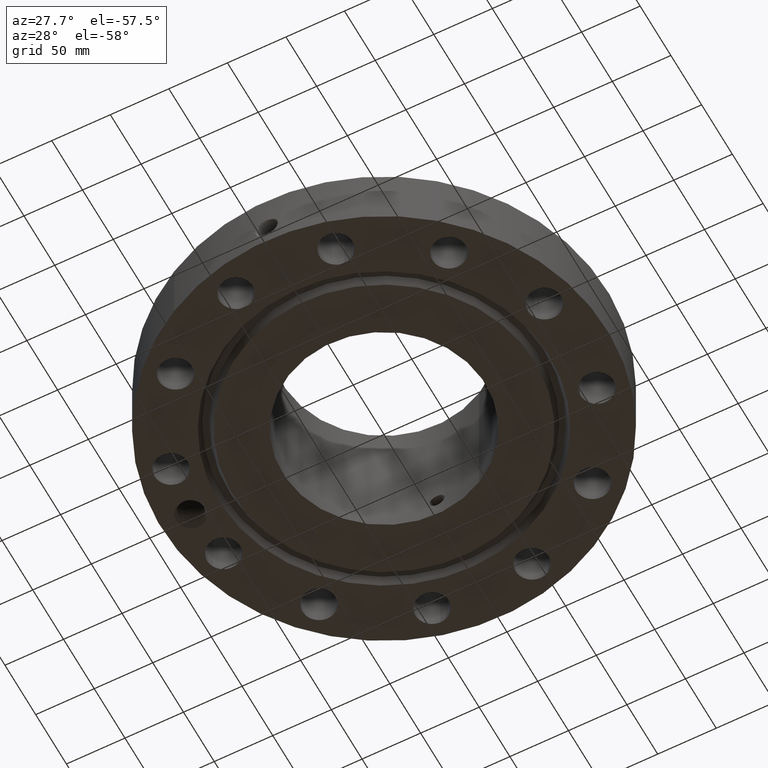
[diagram: clean part render]
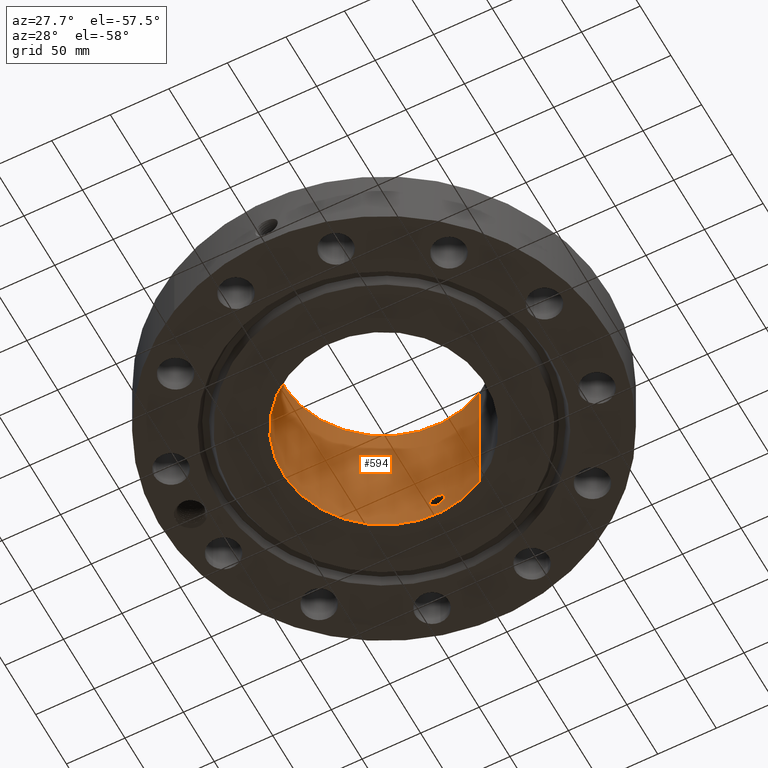
[diagram: same view with one face highlighted and labeled with its STEP entity id]
A machine part, auxiliary view. The second image highlights one B-rep face of the part: STEP entity #594.
In plain terms, the highlighted cylindrical surface (partial cylindrical patch) has radius 86.5251 mm, axis along (0, 0, -1).
Its self-contained STEP definition (entity closure, byte-faithful):
#232=AXIS2_PLACEMENT_3D('Cylinder Axis2P3D',#229,#230,#231) ;
#533=AXIS2_PLACEMENT_3D('Circle Axis2P3D',#531,#532,$) ;
#543=AXIS2_PLACEMENT_3D('Circle Axis2P3D',#541,#542,$) ;
#229=CARTESIAN_POINT('Axis2P3D Location',(0.,0.,2.46600000001)) ;
#238=CARTESIAN_POINT('Vertex',(1.63316309726,2.98948499709,4.93200000002)) ;
#240=CARTESIAN_POINT('Vertex',(-1.63316309726,-2.98948499709,4.93200000002)) ;
#243=CARTESIAN_POINT('Line Origine',(1.63316309726,2.98948499709,2.46600000001)) ;
#247=CARTESIAN_POINT('Vertex',(1.63316309726,2.98948499709,-1.28680967894E-014)) ;
#254=CARTESIAN_POINT('Vertex',(-1.63316309726,-2.98948499709,-1.28680967894E-014)) ;
#257=CARTESIAN_POINT('Line Origine',(-1.63316309726,-2.98948499709,2.46600000001)) ;
#531=CARTESIAN_POINT('Axis2P3D Location',(0.,0.,4.93200000002)) ;
#541=CARTESIAN_POINT('Axis2P3D Location',(0.,0.,-1.28680967894E-014)) ;
#553=CARTESIAN_POINT('Control Point',(0.219395640473,3.39942756991,0.869856384655)) ;
#554=CARTESIAN_POINT('Control Point',(0.206922090819,3.40023260027,0.892689064143)) ;
#555=CARTESIAN_POINT('Control Point',(0.191480270867,3.40117174988,0.913895419936)) ;
#556=CARTESIAN_POINT('Control Point',(0.173350436995,3.40217234365,0.932964372555)) ;
#557=CARTESIAN_POINT('Control Point',(0.112173204399,3.4050649443,0.982423290157)) ;
#558=CARTESIAN_POINT('Control Point',(0.0350454157158,3.40694423699,1.00595853391)) ;
#559=CARTESIAN_POINT('Control Point',(-0.019493074421,3.40708579679,1.00761226367)) ;
#560=CARTESIAN_POINT('Control Point',(-0.124058529577,3.40502079393,0.982504485926)) ;
#561=CARTESIAN_POINT('Control Point',(-0.2030914497,3.40074014384,0.909671245982)) ;
#562=CARTESIAN_POINT('Control Point',(-0.232089622916,3.39862929034,0.863500959846)) ;
#563=CARTESIAN_POINT('Control Point',(-0.25582004358,3.39688687915,0.785327448824)) ;
#564=CARTESIAN_POINT('Control Point',(-0.248318916533,3.39743715578,0.705895312216)) ;
#565=CARTESIAN_POINT('Control Point',(-0.242084279065,3.39790142147,0.679274865337)) ;
#566=CARTESIAN_POINT('Control Point',(-0.232337683464,3.39859230345,0.653833866139)) ;
#567=CARTESIAN_POINT('Control Point',(-0.219395640473,3.39942756991,0.630143615351)) ;
#568=CARTESIAN_POINT('Vertex',(0.219395640473,3.39942756991,0.869856384655)) ;
#570=CARTESIAN_POINT('Vertex',(-0.219395640473,3.39942756991,0.630143615351)) ;
#574=CARTESIAN_POINT('Control Point',(-0.219395640473,3.39942756991,0.630143615351)) ;
#575=CARTESIAN_POINT('Control Point',(-0.206922090819,3.40023260027,0.607310935864)) ;
#576=CARTESIAN_POINT('Control Point',(-0.191480270868,3.40117174988,0.586104580072)) ;
#577=CARTESIAN_POINT('Control Point',(-0.173350436997,3.40217234365,0.567035627453)) ;
#578=CARTESIAN_POINT('Control Point',(-0.112173204394,3.4050649443,0.517576709844)) ;
#579=CARTESIAN_POINT('Control Point',(-0.0350454157001,3.40694423699,0.494041466089)) ;
#580=CARTESIAN_POINT('Control Point',(0.0194930743946,3.40708579679,0.492387736328)) ;
#581=CARTESIAN_POINT('Control Point',(0.124058529556,3.40502079393,0.517495514068)) ;
#582=CARTESIAN_POINT('Control Point',(0.203091449685,3.40074014384,0.590328754009)) ;
#583=CARTESIAN_POINT('Control Point',(0.232089622919,3.39862929034,0.636499040171)) ;
#584=CARTESIAN_POINT('Control Point',(0.25582004358,3.39688687915,0.714672551186)) ;
#585=CARTESIAN_POINT('Control Point',(0.248318916534,3.39743715578,0.79410468779)) ;
#586=CARTESIAN_POINT('Control Point',(0.242084279066,3.39790142147,0.820725134665)) ;
#587=CARTESIAN_POINT('Control Point',(0.232337683465,3.39859230345,0.846166133865)) ;
#588=CARTESIAN_POINT('Control Point',(0.219395640473,3.39942756991,0.869856384655)) ;
#230=DIRECTION('Axis2P3D Direction',(0.,0.,-0.0393700787402)) ;
#231=DIRECTION('Axis2P3D XDirection',(-0.0188750212049,-0.0345504945626,0.)) ;
#244=DIRECTION('Vector Direction',(0.,0.,-0.0393700787402)) ;
#258=DIRECTION('Vector Direction',(0.,0.,-0.0393700787402)) ;
#532=DIRECTION('Axis2P3D Direction',(0.,0.,-0.0393700787402)) ;
#542=DIRECTION('Axis2P3D Direction',(0.,0.,-0.0393700787402)) ;
#245=VECTOR('Line Direction',#244,0.0393700787402) ;
#259=VECTOR('Line Direction',#258,0.0393700787402) ;
#547=ORIENTED_EDGE('',*,*,#535,.F.) ;
#548=ORIENTED_EDGE('',*,*,#261,.T.) ;
#549=ORIENTED_EDGE('',*,*,#545,.T.) ;
#550=ORIENTED_EDGE('',*,*,#249,.F.) ;
#591=ORIENTED_EDGE('',*,*,#572,.F.) ;
#592=ORIENTED_EDGE('',*,*,#589,.F.) ;
#593=FACE_BOUND('',#590,.T.) ;
#594=ADVANCED_FACE('PartBody',(#551,#593),#233,.F.) ;
#552=B_SPLINE_CURVE_WITH_KNOTS('',5,(#553,#554,#555,#556,#557,#558,#559,#560,#561,#562,#563,#564,#565,#566,#567),.UNSPECIFIED.,.F.,.U.,(6,3,3,3,6),(0.,4.67514847916,14.0207936726,23.370711791,28.2214539037),.UNSPECIFIED.) ;
#573=B_SPLINE_CURVE_WITH_KNOTS('',5,(#574,#575,#576,#577,#578,#579,#580,#581,#582,#583,#584,#585,#586,#587,#588),.UNSPECIFIED.,.F.,.U.,(6,3,3,3,6),(0.,4.67514847899,14.0207936744,23.3707117913,28.2214539043),.UNSPECIFIED.) ;
#534=CIRCLE('generated circle',#533,3.40650000001) ;
#544=CIRCLE('generated circle',#543,3.40650000001) ;
#233=CYLINDRICAL_SURFACE('generated cylinder',#232,3.40650000001) ;
#249=EDGE_CURVE('',#239,#248,#246,.T.) ;
#261=EDGE_CURVE('',#241,#255,#260,.T.) ;
#535=EDGE_CURVE('',#241,#239,#534,.T.) ;
#545=EDGE_CURVE('',#255,#248,#544,.T.) ;
#572=EDGE_CURVE('',#569,#571,#552,.T.) ;
#589=EDGE_CURVE('',#571,#569,#573,.T.) ;
#546=EDGE_LOOP('',(#547,#548,#549,#550)) ;
#590=EDGE_LOOP('',(#591,#592)) ;
#551=FACE_OUTER_BOUND('',#546,.T.) ;
#246=LINE('Line',#243,#245) ;
#260=LINE('Line',#257,#259) ;
#239=VERTEX_POINT('',#238) ;
#241=VERTEX_POINT('',#240) ;
#248=VERTEX_POINT('',#247) ;
#255=VERTEX_POINT('',#254) ;
#569=VERTEX_POINT('',#568) ;
#571=VERTEX_POINT('',#570) ;